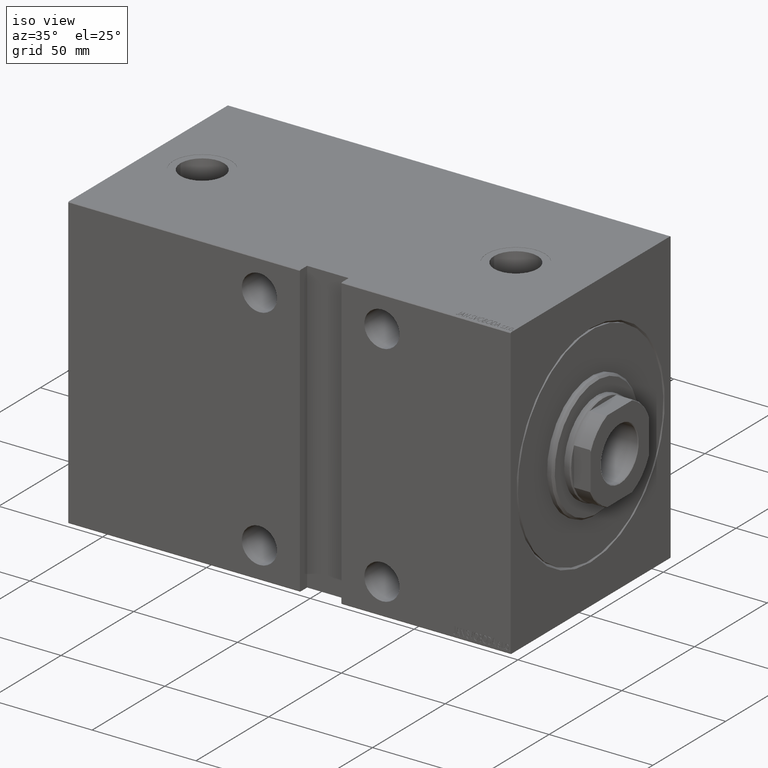
[diagram: clean part render]
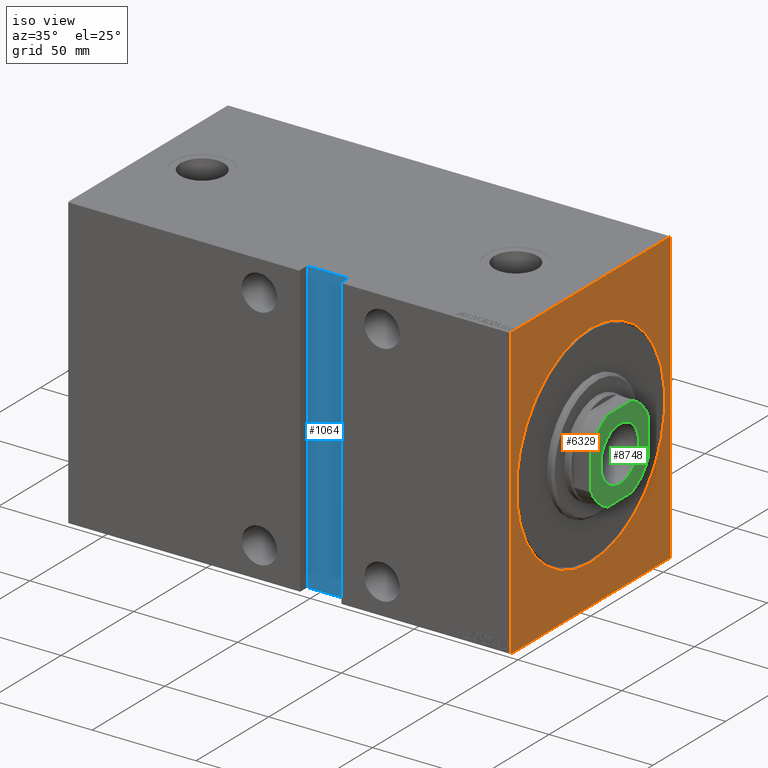
[diagram: same view with three faces highlighted in distinct colors, each labeled with its STEP entity id]
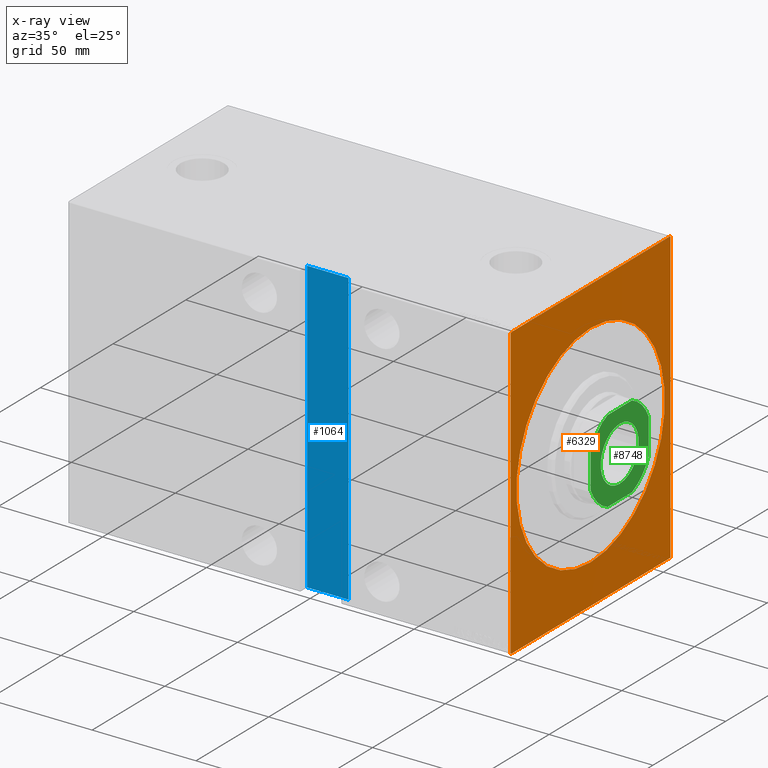
[diagram: x-ray of the same camera — body ghosted, the three highlighted faces saturated]
A machine part, iso view with three faces highlighted in distinct colors.
The next image is the same camera in x-ray (body ghosted, the three faces saturated) — at least one of them is partly hidden behind the body in this view.
Their STEP definitions:

[orange] entity #6329 — the highlighted planar face has unit normal (-1, -0, 0).
#1150 = CARTESIAN_POINT ( 'NONE',  ( 0.000000000000000000, 54.99999999999999289, 70.00000000000000000 ) ) ;
#1636 = CARTESIAN_POINT ( 'NONE',  ( 0.000000000000000000, -54.99999999999999289, -69.69999999999998863 ) ) ;
#1749 = CARTESIAN_POINT ( 'NONE',  ( 0.000000000000000000, -54.99999999999999289, -70.00000000000000000 ) ) ;
#2346 = CIRCLE ( 'NONE', #27825, 50.99999999999999289 ) ;
#2735 = VERTEX_POINT ( 'NONE', #24575 ) ;
#2807 = ORIENTED_EDGE ( 'NONE', *, *, #43379, .F. ) ;
#4025 = CARTESIAN_POINT ( 'NONE',  ( 0.000000000000000000, 0.000000000000000000, 0.000000000000000000 ) ) ;
#4319 = DIRECTION ( 'NONE',  ( -0.000000000000000000, 0.7071067811865802133, 0.7071067811865149322 ) ) ;
#4444 = LINE ( 'NONE', #1150, #5462 ) ;
#4462 = DIRECTION ( 'NONE',  ( 0.000000000000000000, 0.000000000000000000, -1.000000000000000000 ) ) ;
#4853 = CARTESIAN_POINT ( 'NONE',  ( 0.000000000000000000, 54.69999999999999574, 70.00000000000000000 ) ) ;
#4992 = CARTESIAN_POINT ( 'NONE',  ( 0.000000000000000000, 54.69999999999999574, -70.00000000000000000 ) ) ;
#5462 = VECTOR ( 'NONE', #17953, 1000.000000000000000 ) ;
#5821 = DIRECTION ( 'NONE',  ( 0.000000000000000000, -1.982541115402065110E-16, 1.000000000000000000 ) ) ;
#6011 = VERTEX_POINT ( 'NONE', #1636 ) ;
#6068 = CARTESIAN_POINT ( 'NONE',  ( 0.000000000000000000, -54.99999999999999289, 70.00000000000000000 ) ) ;
#6108 = ORIENTED_EDGE ( 'NONE', *, *, #24276, .T. ) ;
#6329 = ADVANCED_FACE ( 'NONE', ( #34381, #27284 ), #40822, .F. ) ;
#7345 = ORIENTED_EDGE ( 'NONE', *, *, #27645, .F. ) ;
#7531 = ORIENTED_EDGE ( 'NONE', *, *, #25625, .T. ) ;
#7586 = EDGE_CURVE ( 'NONE', #13800, #25080, #26959, .T. ) ;
#7799 = DIRECTION ( 'NONE',  ( 1.000000000000000000, 0.000000000000000000, 0.000000000000000000 ) ) ;
#8688 = VECTOR ( 'NONE', #28877, 999.9999999999998863 ) ;
#9050 = DIRECTION ( 'NONE',  ( 1.000000000000000000, 0.000000000000000000, 0.000000000000000000 ) ) ;
#10197 = CIRCLE ( 'NONE', #25057, 50.99999999999999289 ) ;
#11706 = CARTESIAN_POINT ( 'NONE',  ( 0.000000000000000000, 0.000000000000000000, 0.000000000000000000 ) ) ;
#11713 = CARTESIAN_POINT ( 'NONE',  ( 0.000000000000000000, 54.99999999999999289, 69.69999999999998863 ) ) ;
#11726 = ORIENTED_EDGE ( 'NONE', *, *, #28443, .T. ) ;
#12105 = DIRECTION ( 'NONE',  ( 1.000000000000000000, 0.000000000000000000, 0.000000000000000000 ) ) ;
#12122 = DIRECTION ( 'NONE',  ( 0.000000000000000000, 1.000000000000000000, 0.000000000000000000 ) ) ;
#12230 = EDGE_CURVE ( 'NONE', #33822, #32244, #26296, .T. ) ;
#12472 = CARTESIAN_POINT ( 'NONE',  ( 0.000000000000000000, 0.000000000000000000, 50.99999999999999289 ) ) ;
#12914 = DIRECTION ( 'NONE',  ( 0.000000000000000000, 0.000000000000000000, -1.000000000000000000 ) ) ;
#13800 = VERTEX_POINT ( 'NONE', #4853 ) ;
#14627 = VERTEX_POINT ( 'NONE', #23954 ) ;
#15401 = VERTEX_POINT ( 'NONE', #12472 ) ;
#15755 = ORIENTED_EDGE ( 'NONE', *, *, #7586, .T. ) ;
#15799 = VECTOR ( 'NONE', #4319, 999.9999999999998863 ) ;
#16470 = ORIENTED_EDGE ( 'NONE', *, *, #24635, .T. ) ;
#17539 = EDGE_LOOP ( 'NONE', ( #2807, #15755, #7345, #11726, #19613, #16470, #20311, #7531 ) ) ;
#17600 = LINE ( 'NONE', #37554, #15799 ) ;
#17953 = DIRECTION ( 'NONE',  ( 0.000000000000000000, -1.000000000000000000, 0.000000000000000000 ) ) ;
#19406 = DIRECTION ( 'NONE',  ( 0.000000000000000000, 0.000000000000000000, -1.000000000000000000 ) ) ;
#19613 = ORIENTED_EDGE ( 'NONE', *, *, #12230, .F. ) ;
#20232 = AXIS2_PLACEMENT_3D ( 'NONE', #4025, #7799, #4462 ) ;
#20311 = ORIENTED_EDGE ( 'NONE', *, *, #39171, .F. ) ;
#23202 = CARTESIAN_POINT ( 'NONE',  ( 0.000000000000000000, 54.69999999999999574, 70.00000000000000000 ) ) ;
#23954 = CARTESIAN_POINT ( 'NONE',  ( 0.000000000000000000, 55.00000000000002132, -69.70000000000001705 ) ) ;
#24232 = VECTOR ( 'NONE', #5821, 1000.000000000000000 ) ;
#24276 = EDGE_CURVE ( 'NONE', #37467, #15401, #2346, .T. ) ;
#24372 = EDGE_LOOP ( 'NONE', ( #32190, #6108 ) ) ;
#24575 = CARTESIAN_POINT ( 'NONE',  ( 0.000000000000000000, -54.99999999999999289, 69.70000000000001705 ) ) ;
#24635 = EDGE_CURVE ( 'NONE', #33822, #6011, #40452, .T. ) ;
#25057 = AXIS2_PLACEMENT_3D ( 'NONE', #42933, #12105, #19406 ) ;
#25080 = VERTEX_POINT ( 'NONE', #11713 ) ;
#25625 = EDGE_CURVE ( 'NONE', #2735, #33384, #17600, .T. ) ;
#26044 = CARTESIAN_POINT ( 'NONE',  ( 0.000000000000000000, -54.69999999999999574, -70.00000000000000000 ) ) ;
#26296 = LINE ( 'NONE', #1749, #31804 ) ;
#26958 = CARTESIAN_POINT ( 'NONE',  ( 0.000000000000000000, 6.245698675651499656E-15, -50.99999999999999289 ) ) ;
#26959 = LINE ( 'NONE', #23202, #35881 ) ;
#27284 = FACE_OUTER_BOUND ( 'NONE', #17539, .T. ) ;
#27645 = EDGE_CURVE ( 'NONE', #14627, #25080, #43278, .T. ) ;
#27825 = AXIS2_PLACEMENT_3D ( 'NONE', #11706, #9050, #38544 ) ;
#27894 = CARTESIAN_POINT ( 'NONE',  ( 0.000000000000000000, -54.69999999999999574, -70.00000000000000000 ) ) ;
#28443 = EDGE_CURVE ( 'NONE', #14627, #32244, #38427, .T. ) ;
#28877 = DIRECTION ( 'NONE',  ( 0.000000000000000000, -0.7071067811865802133, -0.7071067811865149322 ) ) ;
#29596 = DIRECTION ( 'NONE',  ( -0.000000000000000000, -0.7071067811865149322, 0.7071067811865802133 ) ) ;
#31804 = VECTOR ( 'NONE', #12122, 1000.000000000000000 ) ;
#31879 = EDGE_CURVE ( 'NONE', #15401, #37467, #10197, .T. ) ;
#32190 = ORIENTED_EDGE ( 'NONE', *, *, #31879, .T. ) ;
#32244 = VERTEX_POINT ( 'NONE', #4992 ) ;
#33284 = CARTESIAN_POINT ( 'NONE',  ( 0.000000000000000000, 55.00000000000002132, -70.00000000000000000 ) ) ;
#33384 = VERTEX_POINT ( 'NONE', #37990 ) ;
#33627 = DIRECTION ( 'NONE',  ( -0.000000000000000000, 0.7071067811865149322, -0.7071067811865802133 ) ) ;
#33822 = VERTEX_POINT ( 'NONE', #27894 ) ;
#34381 = FACE_BOUND ( 'NONE', #24372, .T. ) ;
#35152 = VECTOR ( 'NONE', #12914, 1000.000000000000000 ) ;
#35741 = CARTESIAN_POINT ( 'NONE',  ( 0.000000000000000000, 55.00000000000002132, -69.70000000000001705 ) ) ;
#35881 = VECTOR ( 'NONE', #33627, 999.9999999999998863 ) ;
#37467 = VERTEX_POINT ( 'NONE', #26958 ) ;
#37554 = CARTESIAN_POINT ( 'NONE',  ( 0.000000000000000000, -54.99999999999999289, 69.70000000000001705 ) ) ;
#37990 = CARTESIAN_POINT ( 'NONE',  ( 0.000000000000000000, -54.69999999999997442, 70.00000000000000000 ) ) ;
#38427 = LINE ( 'NONE', #35741, #8688 ) ;
#38544 = DIRECTION ( 'NONE',  ( 0.000000000000000000, 0.000000000000000000, -1.000000000000000000 ) ) ;
#39171 = EDGE_CURVE ( 'NONE', #2735, #6011, #40195, .T. ) ;
#40195 = LINE ( 'NONE', #6068, #35152 ) ;
#40452 = LINE ( 'NONE', #26044, #40557 ) ;
#40557 = VECTOR ( 'NONE', #29596, 999.9999999999998863 ) ;
#40822 = PLANE ( 'NONE',  #20232 ) ;
#42933 = CARTESIAN_POINT ( 'NONE',  ( 0.000000000000000000, 0.000000000000000000, 0.000000000000000000 ) ) ;
#43278 = LINE ( 'NONE', #33284, #24232 ) ;
#43379 = EDGE_CURVE ( 'NONE', #13800, #33384, #4444, .T. ) ;

[blue] entity #1064 — the highlighted planar face has unit normal (0, -1, -0).
#302 = EDGE_CURVE ( 'NONE', #535, #6599, #25293, .T. ) ;
#535 = VERTEX_POINT ( 'NONE', #4886 ) ;
#795 = DIRECTION ( 'NONE',  ( 1.000000000000000000, 0.000000000000000000, 0.000000000000000000 ) ) ;
#890 = DIRECTION ( 'NONE',  ( -1.982541115402065110E-16, 0.000000000000000000, -1.000000000000000000 ) ) ;
#1055 = AXIS2_PLACEMENT_3D ( 'NONE', #14292, #37791, #30935 ) ;
#1064 = ADVANCED_FACE ( 'NONE', ( #38245 ), #14750, .T. ) ;
#1610 = ORIENTED_EDGE ( 'NONE', *, *, #12826, .T. ) ;
#1756 = LINE ( 'NONE', #4195, #41713 ) ;
#3041 = DIRECTION ( 'NONE',  ( 0.000000000000000000, 0.000000000000000000, -1.000000000000000000 ) ) ;
#4195 = CARTESIAN_POINT ( 'NONE',  ( 101.5000000000000000, 50.00000000000000711, 70.00000000000000000 ) ) ;
#4886 = CARTESIAN_POINT ( 'NONE',  ( 81.50000000000001421, 50.00000000000000711, -70.00000000000000000 ) ) ;
#6599 = VERTEX_POINT ( 'NONE', #11048 ) ;
#7388 = VECTOR ( 'NONE', #38833, 1000.000000000000000 ) ;
#9859 = LINE ( 'NONE', #36894, #13572 ) ;
#11048 = CARTESIAN_POINT ( 'NONE',  ( 101.5000000000000000, 50.00000000000001421, -70.00000000000000000 ) ) ;
#12826 = EDGE_CURVE ( 'NONE', #25762, #6599, #1756, .T. ) ;
#13572 = VECTOR ( 'NONE', #795, 1000.000000000000000 ) ;
#14292 = CARTESIAN_POINT ( 'NONE',  ( 0.000000000000000000, 50.00000000000000711, 0.000000000000000000 ) ) ;
#14750 = PLANE ( 'NONE',  #1055 ) ;
#21128 = CARTESIAN_POINT ( 'NONE',  ( 81.50000000000001421, 50.00000000000000711, 70.00000000000000000 ) ) ;
#21753 = CARTESIAN_POINT ( 'NONE',  ( 81.50000000000001421, 50.00000000000000711, -70.00000000000000000 ) ) ;
#21980 = EDGE_CURVE ( 'NONE', #23203, #25762, #9859, .T. ) ;
#23203 = VERTEX_POINT ( 'NONE', #31967 ) ;
#25293 = LINE ( 'NONE', #21753, #7388 ) ;
#25762 = VERTEX_POINT ( 'NONE', #29328 ) ;
#28330 = EDGE_CURVE ( 'NONE', #23203, #535, #38207, .T. ) ;
#29328 = CARTESIAN_POINT ( 'NONE',  ( 101.5000000000000000, 50.00000000000000711, 70.00000000000000000 ) ) ;
#29945 = VECTOR ( 'NONE', #3041, 1000.000000000000000 ) ;
#29979 = ORIENTED_EDGE ( 'NONE', *, *, #302, .F. ) ;
#30911 = ORIENTED_EDGE ( 'NONE', *, *, #21980, .T. ) ;
#30935 = DIRECTION ( 'NONE',  ( 0.000000000000000000, -0.000000000000000000, 1.000000000000000000 ) ) ;
#31967 = CARTESIAN_POINT ( 'NONE',  ( 81.50000000000001421, 50.00000000000000711, 70.00000000000000000 ) ) ;
#36894 = CARTESIAN_POINT ( 'NONE',  ( 81.50000000000001421, 50.00000000000000711, 70.00000000000000000 ) ) ;
#37791 = DIRECTION ( 'NONE',  ( -0.000000000000000000, 1.000000000000000000, 0.000000000000000000 ) ) ;
#38207 = LINE ( 'NONE', #21128, #29945 ) ;
#38245 = FACE_OUTER_BOUND ( 'NONE', #39386, .T. ) ;
#38833 = DIRECTION ( 'NONE',  ( 1.000000000000000000, 0.000000000000000000, 0.000000000000000000 ) ) ;
#39386 = EDGE_LOOP ( 'NONE', ( #29979, #40571, #30911, #1610 ) ) ;
#40571 = ORIENTED_EDGE ( 'NONE', *, *, #28330, .F. ) ;
#41713 = VECTOR ( 'NONE', #890, 1000.000000000000000 ) ;

[green] entity #8748 — the highlighted planar face has unit normal (1, 0, -0).
#675 = EDGE_LOOP ( 'NONE', ( #11378, #30494, #5529, #3353, #38479, #40594, #8718, #31590 ) ) ;
#1089 = AXIS2_PLACEMENT_3D ( 'NONE', #15885, #12773, #26500 ) ;
#1383 = CARTESIAN_POINT ( 'NONE',  ( -20.00000000000000000, 8.419619943916694993, 206.0000000000000284 ) ) ;
#1800 = EDGE_CURVE ( 'NONE', #28202, #14668, #11673, .T. ) ;
#1834 = CIRCLE ( 'NONE', #26564, 21.69999999999996021 ) ;
#2746 = VERTEX_POINT ( 'NONE', #41886 ) ;
#3353 = ORIENTED_EDGE ( 'NONE', *, *, #1800, .T. ) ;
#4040 = EDGE_CURVE ( 'NONE', #25371, #30153, #1834, .T. ) ;
#5228 = CARTESIAN_POINT ( 'NONE',  ( -20.00000000000000000, -8.419619943916702098, 206.0000000000000284 ) ) ;
#5527 = EDGE_CURVE ( 'NONE', #23299, #34656, #42221, .T. ) ;
#5529 = ORIENTED_EDGE ( 'NONE', *, *, #19411, .T. ) ;
#5982 = CARTESIAN_POINT ( 'NONE',  ( 0.000000000000000000, 0.000000000000000000, 206.0000000000000284 ) ) ;
#7860 = CIRCLE ( 'NONE', #13480, 21.69999999999999574 ) ;
#8544 = VECTOR ( 'NONE', #39332, 1000.000000000000000 ) ;
#8637 = DIRECTION ( 'NONE',  ( -1.000000000000000000, -0.000000000000000000, -0.000000000000000000 ) ) ;
#8718 = ORIENTED_EDGE ( 'NONE', *, *, #19974, .T. ) ;
#8748 = ADVANCED_FACE ( 'NONE', ( #35124, #35551 ), #28896, .T. ) ;
#9121 = CARTESIAN_POINT ( 'NONE',  ( 13.04999999999994920, 0.000000000000000000, 206.0000000000000284 ) ) ;
#9298 = VECTOR ( 'NONE', #37304, 1000.000000000000000 ) ;
#9819 = CARTESIAN_POINT ( 'NONE',  ( 0.000000000000000000, 0.000000000000000000, 206.0000000000000284 ) ) ;
#10067 = CARTESIAN_POINT ( 'NONE',  ( -8.419619943916709204, -19.99999999999999645, 206.0000000000000284 ) ) ;
#11197 = CARTESIAN_POINT ( 'NONE',  ( 0.000000000000000000, 0.000000000000000000, 206.0000000000000284 ) ) ;
#11378 = ORIENTED_EDGE ( 'NONE', *, *, #18517, .T. ) ;
#11673 = CIRCLE ( 'NONE', #1089, 21.69999999999999574 ) ;
#12033 = CARTESIAN_POINT ( 'NONE',  ( 8.419619943916815785, 20.00000000000000355, 206.0000000000000284 ) ) ;
#12266 = EDGE_CURVE ( 'NONE', #14668, #13994, #12346, .T. ) ;
#12346 = LINE ( 'NONE', #15894, #24690 ) ;
#12757 = DIRECTION ( 'NONE',  ( -0.000000000000000000, 0.000000000000000000, 1.000000000000000000 ) ) ;
#12773 = DIRECTION ( 'NONE',  ( -0.000000000000000000, 0.000000000000000000, 1.000000000000000000 ) ) ;
#13480 = AXIS2_PLACEMENT_3D ( 'NONE', #11197, #24697, #38241 ) ;
#13994 = VERTEX_POINT ( 'NONE', #5228 ) ;
#14668 = VERTEX_POINT ( 'NONE', #1383 ) ;
#15379 = AXIS2_PLACEMENT_3D ( 'NONE', #38880, #41986, #15808 ) ;
#15808 = DIRECTION ( 'NONE',  ( 1.000000000000000000, 0.000000000000000000, 0.000000000000000000 ) ) ;
#15885 = CARTESIAN_POINT ( 'NONE',  ( 0.000000000000000000, 0.000000000000000000, 206.0000000000000284 ) ) ;
#15894 = CARTESIAN_POINT ( 'NONE',  ( -20.00000000000000355, 20.00000000000000355, 206.0000000000000284 ) ) ;
#18507 = EDGE_CURVE ( 'NONE', #13994, #38262, #7860, .T. ) ;
#18517 = EDGE_CURVE ( 'NONE', #30153, #2746, #35997, .T. ) ;
#19411 = EDGE_CURVE ( 'NONE', #38416, #28202, #26123, .T. ) ;
#19769 = CARTESIAN_POINT ( 'NONE',  ( -13.04999999999994920, 1.598164072887289660E-15, 206.0000000000000284 ) ) ;
#19873 = VECTOR ( 'NONE', #8637, 1000.000000000000000 ) ;
#19974 = EDGE_CURVE ( 'NONE', #38262, #25371, #27324, .T. ) ;
#20862 = CARTESIAN_POINT ( 'NONE',  ( 20.00000000000000355, -8.419619943916586635, 206.0000000000000284 ) ) ;
#22276 = CARTESIAN_POINT ( 'NONE',  ( 8.419619943916611504, -19.99999999999999645, 206.0000000000000284 ) ) ;
#23299 = VERTEX_POINT ( 'NONE', #9121 ) ;
#23382 = ORIENTED_EDGE ( 'NONE', *, *, #31294, .T. ) ;
#24690 = VECTOR ( 'NONE', #42952, 1000.000000000000000 ) ;
#24697 = DIRECTION ( 'NONE',  ( -0.000000000000000000, 0.000000000000000000, 1.000000000000000000 ) ) ;
#25371 = VERTEX_POINT ( 'NONE', #22276 ) ;
#26123 = LINE ( 'NONE', #32791, #19873 ) ;
#26270 = CARTESIAN_POINT ( 'NONE',  ( 0.000000000000000000, 0.000000000000000000, 206.0000000000000284 ) ) ;
#26297 = CARTESIAN_POINT ( 'NONE',  ( -8.419619943916689664, 20.00000000000000355, 206.0000000000000284 ) ) ;
#26500 = DIRECTION ( 'NONE',  ( 1.000000000000000000, 0.000000000000000000, 0.000000000000000000 ) ) ;
#26564 = AXIS2_PLACEMENT_3D ( 'NONE', #26270, #12757, #28951 ) ;
#26783 = DIRECTION ( 'NONE',  ( 0.000000000000000000, -0.000000000000000000, -1.000000000000000000 ) ) ;
#27324 = LINE ( 'NONE', #41533, #9298 ) ;
#27842 = ORIENTED_EDGE ( 'NONE', *, *, #5527, .T. ) ;
#27850 = CIRCLE ( 'NONE', #31415, 13.04999999999994920 ) ;
#28202 = VERTEX_POINT ( 'NONE', #26297 ) ;
#28896 = PLANE ( 'NONE',  #15379 ) ;
#28951 = DIRECTION ( 'NONE',  ( 1.000000000000000000, 0.000000000000000000, 0.000000000000000000 ) ) ;
#30153 = VERTEX_POINT ( 'NONE', #20862 ) ;
#30494 = ORIENTED_EDGE ( 'NONE', *, *, #42152, .T. ) ;
#31294 = EDGE_CURVE ( 'NONE', #34656, #23299, #27850, .T. ) ;
#31415 = AXIS2_PLACEMENT_3D ( 'NONE', #9819, #33533, #37071 ) ;
#31590 = ORIENTED_EDGE ( 'NONE', *, *, #4040, .T. ) ;
#32791 = CARTESIAN_POINT ( 'NONE',  ( -20.00000000000000355, 20.00000000000000355, 206.0000000000000284 ) ) ;
#32828 = EDGE_LOOP ( 'NONE', ( #27842, #23382 ) ) ;
#33533 = DIRECTION ( 'NONE',  ( 0.000000000000000000, -0.000000000000000000, -1.000000000000000000 ) ) ;
#34656 = VERTEX_POINT ( 'NONE', #19769 ) ;
#35124 = FACE_BOUND ( 'NONE', #32828, .T. ) ;
#35551 = FACE_OUTER_BOUND ( 'NONE', #675, .T. ) ;
#35997 = LINE ( 'NONE', #38893, #8544 ) ;
#36284 = CARTESIAN_POINT ( 'NONE',  ( 0.000000000000000000, 0.000000000000000000, 206.0000000000000284 ) ) ;
#37071 = DIRECTION ( 'NONE',  ( 1.000000000000000000, 0.000000000000000000, 0.000000000000000000 ) ) ;
#37235 = AXIS2_PLACEMENT_3D ( 'NONE', #5982, #26783, #43225 ) ;
#37304 = DIRECTION ( 'NONE',  ( 1.000000000000000000, 0.000000000000000000, 0.000000000000000000 ) ) ;
#37366 = CIRCLE ( 'NONE', #39514, 21.70000000000004547 ) ;
#38241 = DIRECTION ( 'NONE',  ( 1.000000000000000000, 0.000000000000000000, 0.000000000000000000 ) ) ;
#38262 = VERTEX_POINT ( 'NONE', #10067 ) ;
#38416 = VERTEX_POINT ( 'NONE', #12033 ) ;
#38479 = ORIENTED_EDGE ( 'NONE', *, *, #12266, .T. ) ;
#38880 = CARTESIAN_POINT ( 'NONE',  ( 0.000000000000000000, 0.000000000000000000, 206.0000000000000284 ) ) ;
#38893 = CARTESIAN_POINT ( 'NONE',  ( 20.00000000000000000, 20.00000000000000355, 206.0000000000000284 ) ) ;
#39332 = DIRECTION ( 'NONE',  ( -1.734723475976807094E-16, 1.000000000000000000, -0.000000000000000000 ) ) ;
#39514 = AXIS2_PLACEMENT_3D ( 'NONE', #36284, #42731, #43179 ) ;
#40594 = ORIENTED_EDGE ( 'NONE', *, *, #18507, .T. ) ;
#41533 = CARTESIAN_POINT ( 'NONE',  ( -19.99999999999999645, -19.99999999999999645, 206.0000000000000284 ) ) ;
#41886 = CARTESIAN_POINT ( 'NONE',  ( 20.00000000000000355, 8.419619943916817562, 206.0000000000000284 ) ) ;
#41986 = DIRECTION ( 'NONE',  ( -0.000000000000000000, 0.000000000000000000, 1.000000000000000000 ) ) ;
#42152 = EDGE_CURVE ( 'NONE', #2746, #38416, #37366, .T. ) ;
#42221 = CIRCLE ( 'NONE', #37235, 13.04999999999994920 ) ;
#42731 = DIRECTION ( 'NONE',  ( -0.000000000000000000, 0.000000000000000000, 1.000000000000000000 ) ) ;
#42952 = DIRECTION ( 'NONE',  ( 1.734723475976807094E-16, -1.000000000000000000, 0.000000000000000000 ) ) ;
#43179 = DIRECTION ( 'NONE',  ( 1.000000000000000000, 0.000000000000000000, 0.000000000000000000 ) ) ;
#43225 = DIRECTION ( 'NONE',  ( 1.000000000000000000, 0.000000000000000000, 0.000000000000000000 ) ) ;